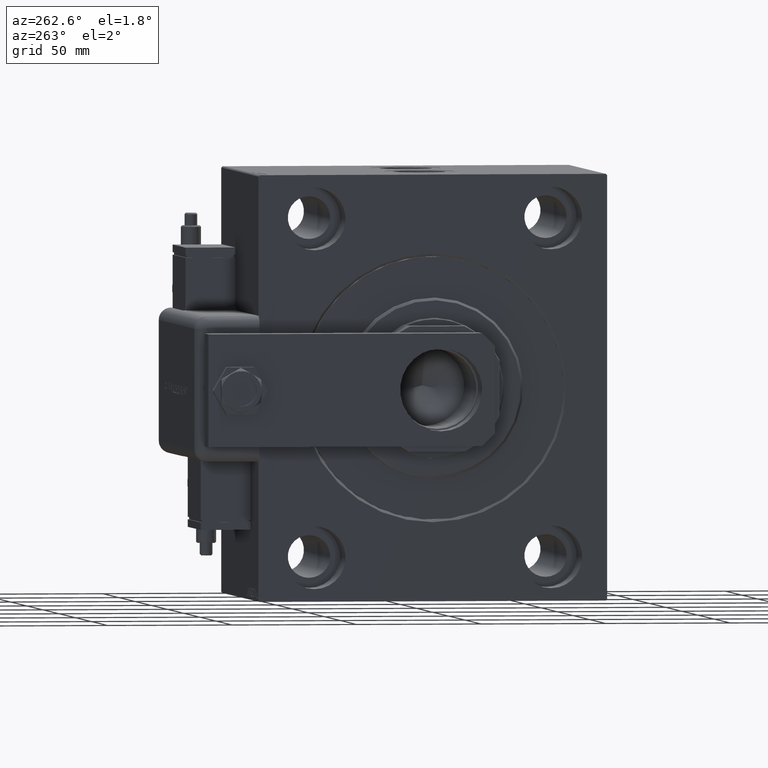
[diagram: clean part render]
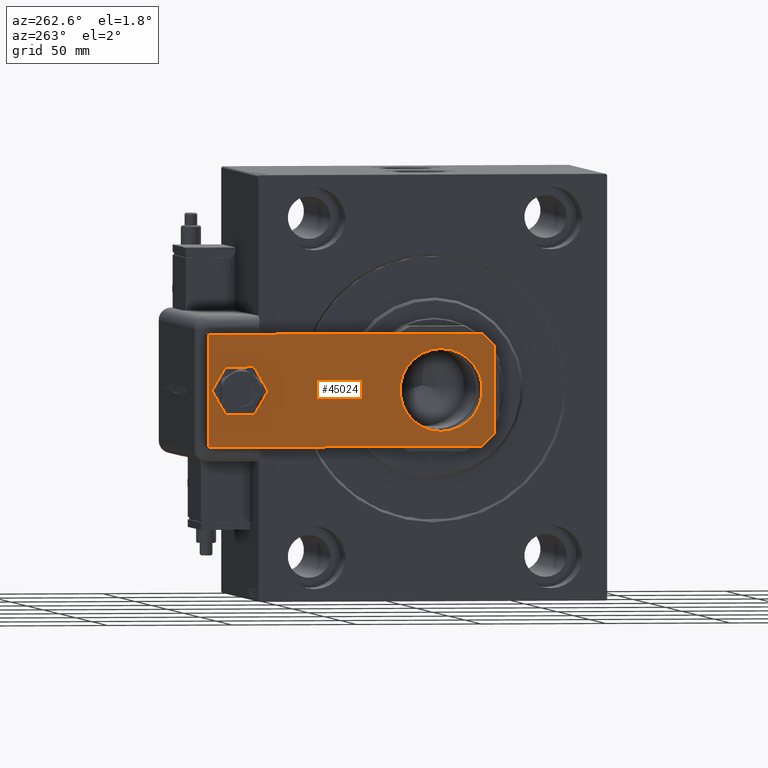
[diagram: same view with one face highlighted and labeled with its STEP entity id]
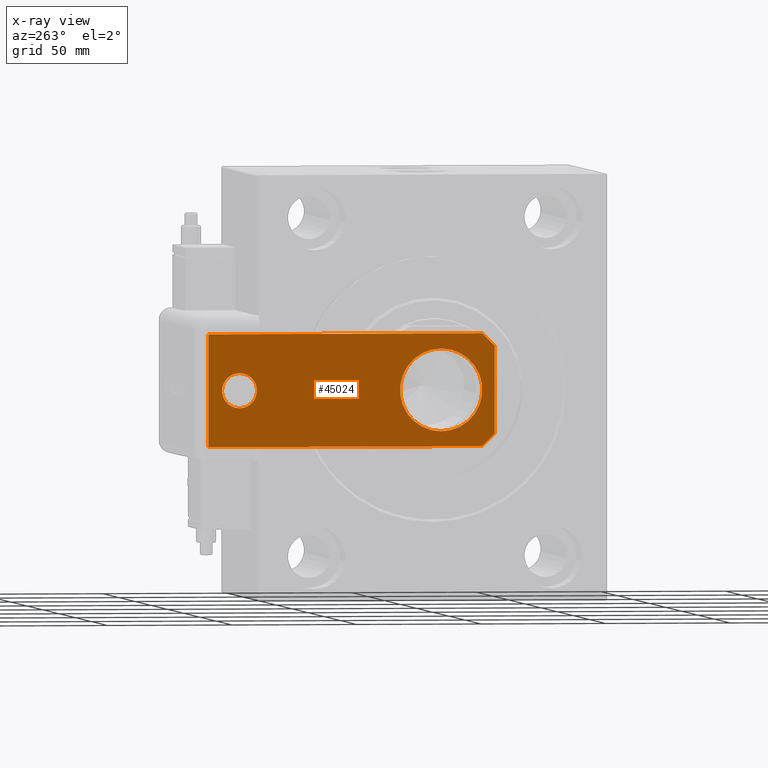
[diagram: x-ray of the same camera — body ghosted, the highlighted face saturated]
A machine part, auxiliary view. The second image highlights one B-rep face of the part: STEP entity #45024.
The next image is the same camera in x-ray: the body ghosted, the highlighted face saturated — about 0% of this face is hidden behind the body in this view.
In plain terms, the highlighted planar face has unit normal (1, 0, -0).
Its self-contained STEP definition (entity closure, byte-faithful):
#397 = EDGE_CURVE ( 'NONE', #36008, #24671, #25045, .T. ) ;
#2732 = CARTESIAN_POINT ( 'NONE',  ( -22.50000000000001066, 0.000000000000000000, 0.000000000000000000 ) ) ;
#3100 = DIRECTION ( 'NONE',  ( 1.000000000000000000, 0.000000000000000000, 0.000000000000000000 ) ) ;
#3655 = EDGE_CURVE ( 'NONE', #38279, #52412, #30832, .T. ) ;
#4245 = DIRECTION ( 'NONE',  ( 0.000000000000000000, 0.000000000000000000, 1.000000000000000000 ) ) ;
#4486 = CIRCLE ( 'NONE', #54877, 7.000000000000000000 ) ;
#4900 = LINE ( 'NONE', #56906, #43597 ) ;
#6186 = AXIS2_PLACEMENT_3D ( 'NONE', #37003, #32052, #8523 ) ;
#6687 = VECTOR ( 'NONE', #59391, 1000.000000000000000 ) ;
#6991 = LINE ( 'NONE', #58082, #13551 ) ;
#8523 = DIRECTION ( 'NONE',  ( 1.000000000000000000, 0.000000000000000000, 0.000000000000000000 ) ) ;
#12229 = CIRCLE ( 'NONE', #14207, 16.50000000000000000 ) ;
#13283 = EDGE_CURVE ( 'NONE', #44086, #24671, #4900, .T. ) ;
#13551 = VECTOR ( 'NONE', #49390, 1000.000000000000000 ) ;
#13715 = ORIENTED_EDGE ( 'NONE', *, *, #58190, .F. ) ;
#14048 = DIRECTION ( 'NONE',  ( 1.000000000000000000, 0.000000000000000000, 0.000000000000000000 ) ) ;
#14207 = AXIS2_PLACEMENT_3D ( 'NONE', #27986, #46874, #14048 ) ;
#14312 = ORIENTED_EDGE ( 'NONE', *, *, #37045, .T. ) ;
#14972 = ORIENTED_EDGE ( 'NONE', *, *, #45582, .F. ) ;
#15224 = DIRECTION ( 'NONE',  ( 0.000000000000000000, 0.000000000000000000, 1.000000000000000000 ) ) ;
#15287 = ORIENTED_EDGE ( 'NONE', *, *, #29318, .T. ) ;
#15540 = AXIS2_PLACEMENT_3D ( 'NONE', #17955, #56025, #3100 ) ;
#16006 = CARTESIAN_POINT ( 'NONE',  ( -17.50000000000000355, 0.000000000000000000, 0.000000000000000000 ) ) ;
#17278 = EDGE_LOOP ( 'NONE', ( #22247, #14312 ) ) ;
#17740 = CARTESIAN_POINT ( 'NONE',  ( 22.50000000000000000, 115.0000000000000000, 0.000000000000000000 ) ) ;
#17955 = CARTESIAN_POINT ( 'NONE',  ( 0.000000000000000000, 0.000000000000000000, 0.000000000000000000 ) ) ;
#20336 = LINE ( 'NONE', #16006, #34913 ) ;
#20805 = VERTEX_POINT ( 'NONE', #59104 ) ;
#22013 = CARTESIAN_POINT ( 'NONE',  ( -17.50000000000000355, 0.000000000000000000, 0.000000000000000000 ) ) ;
#22081 = LINE ( 'NONE', #17740, #60793 ) ;
#22247 = ORIENTED_EDGE ( 'NONE', *, *, #29694, .T. ) ;
#22697 = VERTEX_POINT ( 'NONE', #29797 ) ;
#22902 = FACE_OUTER_BOUND ( 'NONE', #24361, .T. ) ;
#23733 = VERTEX_POINT ( 'NONE', #39860 ) ;
#24361 = EDGE_LOOP ( 'NONE', ( #31324, #36010, #25373, #13715, #14972, #24373 ) ) ;
#24373 = ORIENTED_EDGE ( 'NONE', *, *, #13283, .T. ) ;
#24671 = VERTEX_POINT ( 'NONE', #36759 ) ;
#25045 = LINE ( 'NONE', #2732, #6687 ) ;
#25373 = ORIENTED_EDGE ( 'NONE', *, *, #3655, .F. ) ;
#27986 = CARTESIAN_POINT ( 'NONE',  ( 0.000000000000000000, 21.50000000000000355, 0.000000000000000000 ) ) ;
#28609 = CARTESIAN_POINT ( 'NONE',  ( -22.50000000000001066, 5.000000000000031974, 0.000000000000000000 ) ) ;
#28924 = AXIS2_PLACEMENT_3D ( 'NONE', #42473, #15224, #29462 ) ;
#29318 = EDGE_CURVE ( 'NONE', #23733, #20805, #37810, .T. ) ;
#29462 = DIRECTION ( 'NONE',  ( 1.000000000000000000, 0.000000000000000000, 0.000000000000000000 ) ) ;
#29598 = CARTESIAN_POINT ( 'NONE',  ( 16.50000000000000000, 21.50000000000000711, 0.000000000000000000 ) ) ;
#29694 = EDGE_CURVE ( 'NONE', #43771, #41177, #54623, .T. ) ;
#29797 = CARTESIAN_POINT ( 'NONE',  ( 22.50000000000000000, 115.0000000000000000, 0.000000000000000000 ) ) ;
#30117 = EDGE_CURVE ( 'NONE', #36008, #52412, #20336, .T. ) ;
#30832 = LINE ( 'NONE', #49403, #39281 ) ;
#31324 = ORIENTED_EDGE ( 'NONE', *, *, #397, .F. ) ;
#32052 = DIRECTION ( 'NONE',  ( 0.000000000000000000, 0.000000000000000000, 1.000000000000000000 ) ) ;
#34572 = DIRECTION ( 'NONE',  ( -0.7071067811865455743, 0.7071067811865493491, -0.000000000000000000 ) ) ;
#34913 = VECTOR ( 'NONE', #34572, 1000.000000000000114 ) ;
#35403 = CARTESIAN_POINT ( 'NONE',  ( -22.50000000000000355, 115.0000000000000000, 0.000000000000000000 ) ) ;
#36008 = VERTEX_POINT ( 'NONE', #22013 ) ;
#36010 = ORIENTED_EDGE ( 'NONE', *, *, #30117, .T. ) ;
#36759 = CARTESIAN_POINT ( 'NONE',  ( 17.49999999999997868, 0.000000000000000000, 0.000000000000000000 ) ) ;
#36926 = DIRECTION ( 'NONE',  ( -1.000000000000000000, 0.000000000000000000, 0.000000000000000000 ) ) ;
#37003 = CARTESIAN_POINT ( 'NONE',  ( 1.963948872468190046E-17, 102.5000000000000142, 0.000000000000000000 ) ) ;
#37045 = EDGE_CURVE ( 'NONE', #41177, #43771, #12229, .T. ) ;
#37139 = FACE_BOUND ( 'NONE', #17278, .T. ) ;
#37810 = CIRCLE ( 'NONE', #6186, 7.000000000000000000 ) ;
#38279 = VERTEX_POINT ( 'NONE', #35403 ) ;
#39281 = VECTOR ( 'NONE', #53745, 1000.000000000000000 ) ;
#39553 = DIRECTION ( 'NONE',  ( -0.7071067811865493491, -0.7071067811865455743, -0.000000000000000000 ) ) ;
#39860 = CARTESIAN_POINT ( 'NONE',  ( 7.000000000000000000, 102.5000000000000142, 0.000000000000000000 ) ) ;
#40974 = EDGE_CURVE ( 'NONE', #20805, #23733, #4486, .T. ) ;
#41177 = VERTEX_POINT ( 'NONE', #29598 ) ;
#41399 = DIRECTION ( 'NONE',  ( 1.000000000000000000, 0.000000000000000000, 0.000000000000000000 ) ) ;
#41703 = CARTESIAN_POINT ( 'NONE',  ( 1.963948872468190046E-17, 102.5000000000000142, 0.000000000000000000 ) ) ;
#41773 = PLANE ( 'NONE',  #15540 ) ;
#42473 = CARTESIAN_POINT ( 'NONE',  ( 0.000000000000000000, 21.50000000000000355, 0.000000000000000000 ) ) ;
#43424 = CARTESIAN_POINT ( 'NONE',  ( -16.50000000000000000, 21.50000000000000355, 0.000000000000000000 ) ) ;
#43597 = VECTOR ( 'NONE', #39553, 1000.000000000000114 ) ;
#43771 = VERTEX_POINT ( 'NONE', #43424 ) ;
#44086 = VERTEX_POINT ( 'NONE', #47698 ) ;
#45024 = ADVANCED_FACE ( 'NONE', ( #22902, #45500, #37139 ), #41773, .F. ) ;
#45500 = FACE_BOUND ( 'NONE', #48122, .T. ) ;
#45582 = EDGE_CURVE ( 'NONE', #44086, #22697, #6991, .T. ) ;
#46874 = DIRECTION ( 'NONE',  ( 0.000000000000000000, 0.000000000000000000, 1.000000000000000000 ) ) ;
#47192 = ORIENTED_EDGE ( 'NONE', *, *, #40974, .T. ) ;
#47698 = CARTESIAN_POINT ( 'NONE',  ( 22.50000000000001066, 5.000000000000003553, 0.000000000000000000 ) ) ;
#48122 = EDGE_LOOP ( 'NONE', ( #47192, #15287 ) ) ;
#49390 = DIRECTION ( 'NONE',  ( -9.050731179009427836E-17, 1.000000000000000000, 0.000000000000000000 ) ) ;
#49403 = CARTESIAN_POINT ( 'NONE',  ( -22.50000000000000355, 115.0000000000000000, 0.000000000000000000 ) ) ;
#52412 = VERTEX_POINT ( 'NONE', #28609 ) ;
#53745 = DIRECTION ( 'NONE',  ( -6.033820786006285224E-17, -1.000000000000000000, 0.000000000000000000 ) ) ;
#54623 = CIRCLE ( 'NONE', #28924, 16.50000000000000000 ) ;
#54877 = AXIS2_PLACEMENT_3D ( 'NONE', #41703, #4245, #41399 ) ;
#56025 = DIRECTION ( 'NONE',  ( -0.000000000000000000, 0.000000000000000000, 1.000000000000000000 ) ) ;
#56906 = CARTESIAN_POINT ( 'NONE',  ( 22.50000000000001066, 5.000000000000004441, 0.000000000000000000 ) ) ;
#58082 = CARTESIAN_POINT ( 'NONE',  ( 22.50000000000001066, 0.000000000000000000, 0.000000000000000000 ) ) ;
#58190 = EDGE_CURVE ( 'NONE', #22697, #38279, #22081, .T. ) ;
#59104 = CARTESIAN_POINT ( 'NONE',  ( -7.000000000000000000, 102.5000000000000142, 0.000000000000000000 ) ) ;
#59391 = DIRECTION ( 'NONE',  ( 1.000000000000000000, 0.000000000000000000, 0.000000000000000000 ) ) ;
#60793 = VECTOR ( 'NONE', #36926, 1000.000000000000000 ) ;